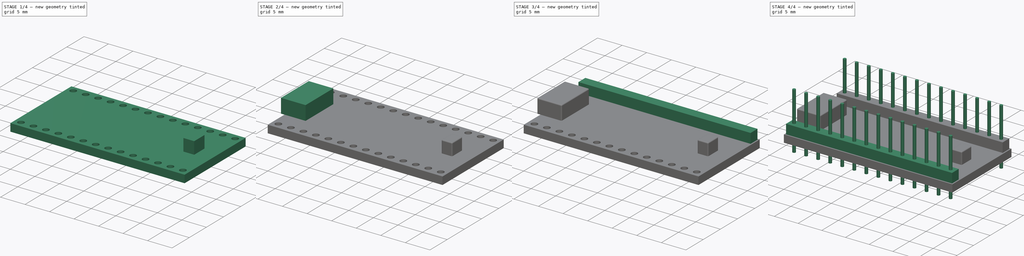
[diagram: build sequence overview — one tinted view per stage of 4, left to right]
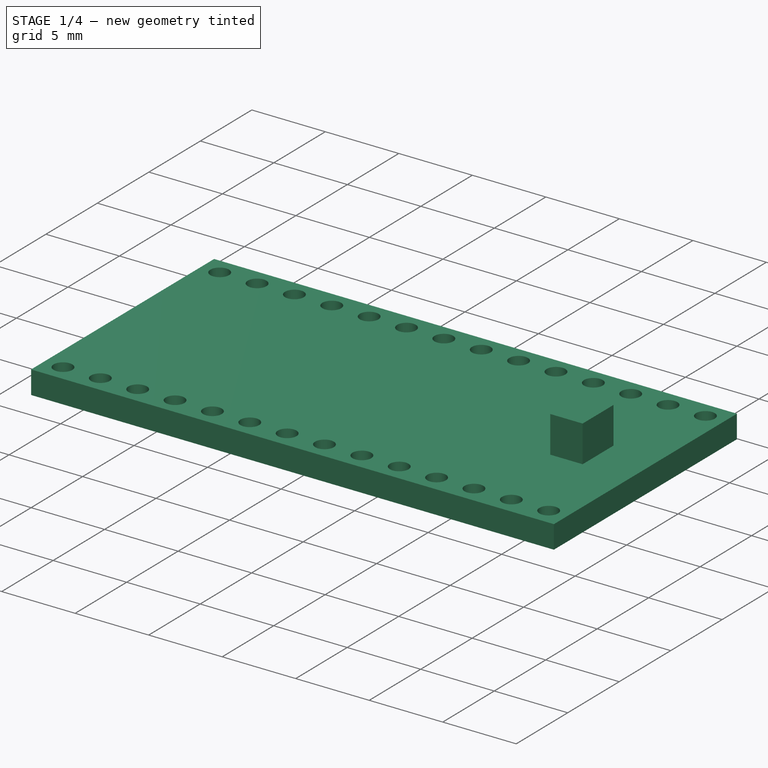
[diagram: stage 1 of 4 — iso view after this stage's code; geometry added in this stage tinted green]
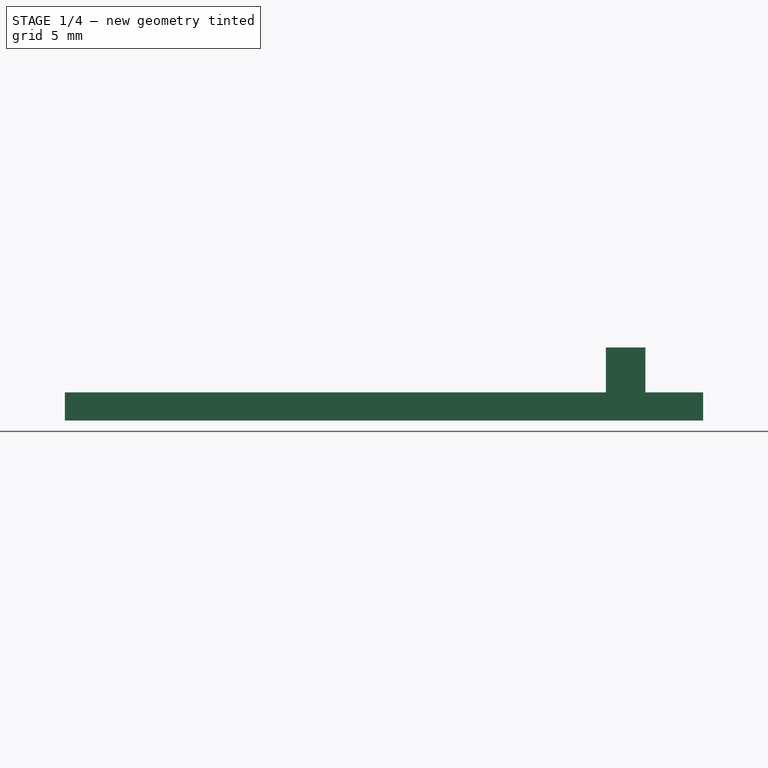
[diagram: stage 1 of 4 — front view after this stage's code; geometry added in this stage tinted green]
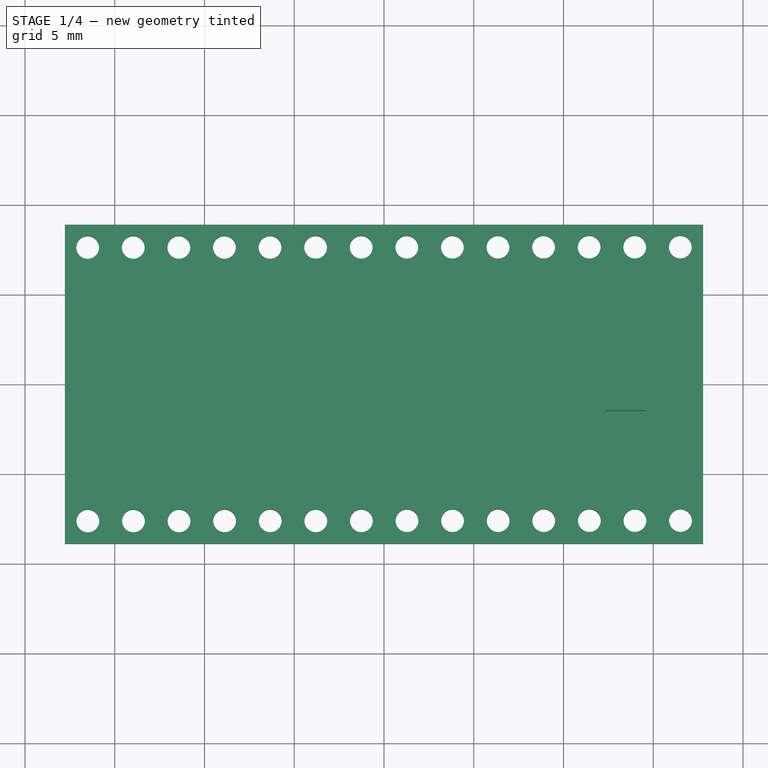
[diagram: stage 1 of 4 — top view after this stage's code; geometry added in this stage tinted green]
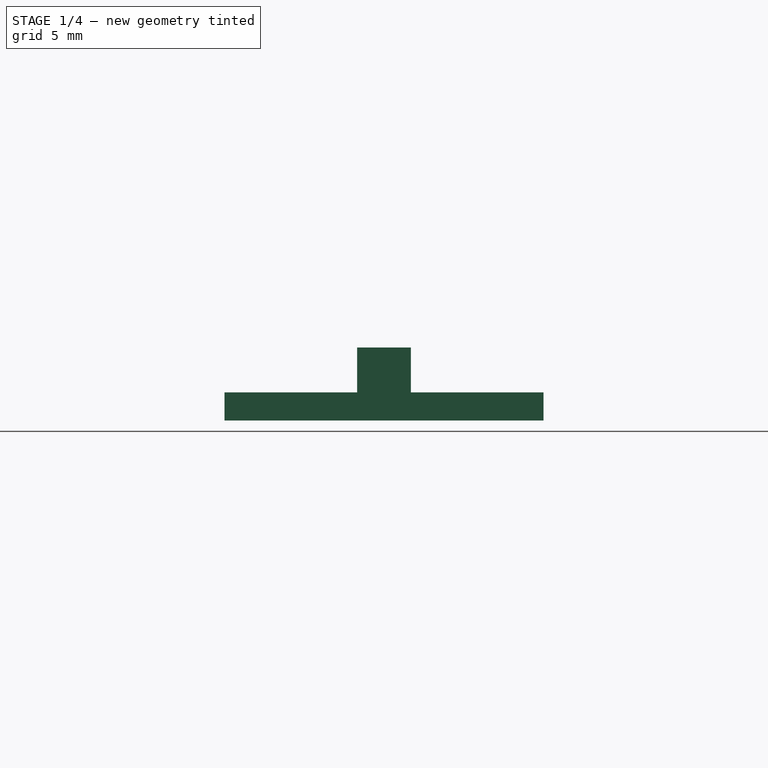
[diagram: stage 1 of 4 — right view after this stage's code; geometry added in this stage tinted green]
FCSTD DOCUMENT  (FreeCAD 0.16RUnknown)
Label: Teensy32_HM
License: All rights reserved
LicenseURL: http://en.wikipedia.org/wiki/All_rights_reserved
objects: Sketcher::SketchObject×7, PartDesign::Pad×5, Part::Fillet×4, PartDesign::Pocket×1, Part::FeaturePython×1, PartDesign::Mirrored×1, App::DocumentObjectGroup×1
note: 25 computed .brp shape members not serialized (recipe doc carries the construction recipe); baked Part::Feature solids carry a one-line shape summary decoded from their .brp

FEATURE [Sketcher::SketchObject] Sketch
  sketch-geometry (4):
    g0: LineSegment StartX=-17.78 StartY=-8.89 StartZ=0 EndX=17.78 EndY=-8.89 EndZ=0
    g1: LineSegment StartX=17.78 StartY=-8.89 StartZ=0 EndX=17.78 EndY=8.89 EndZ=0
    g2: LineSegment StartX=17.78 StartY=8.89 StartZ=0 EndX=-17.78 EndY=8.89 EndZ=0
    g3: LineSegment StartX=-17.78 StartY=8.89 StartZ=0 EndX=-17.78 EndY=-8.89 EndZ=0
  constraints (12):
    c: Coincident(g0,g1)
    c: Coincident(g1,g2)
    c: Coincident(g2,g3)
    c: Coincident(g3,g0)
    c: Horizontal(g0)
    c: Horizontal(g2)
    c: Vertical(g1)
    c: Vertical(g3)
    c: Symmetric(g2,g0,g-1)
    c: Symmetric(g2,g1,g-2)
    c: DistanceX(g2,g2) = 35.56
    c: DistanceY(g1,g1) = 17.78
FEATURE [PartDesign::Pad] Pad
  Length = 1.57
  Length2 = 100
  Sketch = -> Sketch
  Type = 0
FEATURE [Sketcher::SketchObject] Sketch001
  ExternalGeometry = -> [Pad]
  Placement = pos=(0,0,1.57) rot=(0,0,1;0rad)
  Support = -> Pad [Face6]
  sketch-geometry (55):
    g0: Circle CenterX=-16.51 CenterY=7.62 CenterZ=0 NormalX=0 NormalY=0 NormalZ=1 Radius=0.635
    g1: Circle CenterX=-13.97 CenterY=7.62185 CenterZ=0 NormalX=0 NormalY=0 NormalZ=1 Radius=0.635
    g2: LineSegment [constr] StartX=-16.51 StartY=7.62 StartZ=0 EndX=-13.97 EndY=7.62185 EndZ=0
    g3: Circle CenterX=-11.43 CenterY=7.62369 CenterZ=0 NormalX=0 NormalY=0 NormalZ=1 Radius=0.635
    g4: LineSegment [constr] StartX=-13.97 StartY=7.62185 StartZ=0 EndX=-11.43 EndY=7.62369 EndZ=0
    g5: Circle CenterX=-8.89 CenterY=7.62554 CenterZ=0 NormalX=0 NormalY=0 NormalZ=1 Radius=0.635
    g6: LineSegment [constr] StartX=-11.43 StartY=7.62369 StartZ=0 EndX=-8.89 EndY=7.62554 EndZ=0
    g7: Circle CenterX=-6.35 CenterY=7.62738 CenterZ=0 NormalX=0 NormalY=0 NormalZ=1 Radius=0.635
    g8: LineSegment [constr] StartX=-8.89 StartY=7.62554 StartZ=0 EndX=-6.35 EndY=7.62738 EndZ=0
    g9: Circle CenterX=-3.81 CenterY=7.62923 CenterZ=0 NormalX=0 NormalY=0 NormalZ=1 Radius=0.635
    g10: LineSegment [constr] StartX=-6.35 StartY=7.62738 StartZ=0 EndX=-3.81 EndY=7.62923 EndZ=0
    g11: Circle CenterX=-1.27 CenterY=7.63107 CenterZ=0 NormalX=0 NormalY=0 NormalZ=1 Radius=0.635
    g12: LineSegment [constr] StartX=-3.81 StartY=7.62923 StartZ=0 EndX=-1.27 EndY=7.63107 EndZ=0
    g13: Circle CenterX=1.27 CenterY=7.63292 CenterZ=0 NormalX=0 NormalY=0 NormalZ=1 Radius=0.635
    g14: LineSegment [constr] StartX=-1.27 StartY=7.63107 StartZ=0 EndX=1.27 EndY=7.63292 EndZ=0
    g15: Circle CenterX=3.80999 CenterY=7.63476 CenterZ=0 NormalX=0 NormalY=0 NormalZ=1 Radius=0.635
    g16: LineSegment [constr] StartX=1.27 StartY=7.63292 StartZ=0 EndX=3.80999 EndY=7.63476 EndZ=0
    g17: Circle CenterX=6.34999 CenterY=7.63661 CenterZ=0 NormalX=0 NormalY=0 NormalZ=1 Radius=0.635
    g18: LineSegment [constr] StartX=3.80999 StartY=7.63476 StartZ=0 EndX=6.34999 EndY=7.63661 EndZ=0
    g19: Circle CenterX=8.88999 CenterY=7.63845 CenterZ=0 NormalX=0 NormalY=0 NormalZ=1 Radius=0.635
    g20: LineSegment [constr] StartX=6.34999 StartY=7.63661 StartZ=0 EndX=8.88999 EndY=7.63845 EndZ=0
    g21: Circle CenterX=11.43 CenterY=7.6403 CenterZ=0 NormalX=0 NormalY=0 NormalZ=1 Radius=0.635
    g22: LineSegment [constr] StartX=8.88999 StartY=7.63845 StartZ=0 EndX=11.43 EndY=7.6403 EndZ=0
    g23: Circle CenterX=13.97 CenterY=7.64214 CenterZ=0 NormalX=0 NormalY=0 NormalZ=1 Radius=0.635
    g24: LineSegment [constr] StartX=11.43 StartY=7.6403 StartZ=0 EndX=13.97 EndY=7.64214 EndZ=0
    g25: Circle CenterX=16.51 CenterY=7.64399 CenterZ=0 NormalX=0 NormalY=0 NormalZ=1 Radius=0.635
    g26: LineSegment [constr] StartX=13.97 StartY=7.64214 StartZ=0 EndX=16.51 EndY=7.64399 EndZ=0
    g27: Circle CenterX=-16.4989 CenterY=-7.62 CenterZ=0 NormalX=0 NormalY=0 NormalZ=1 Radius=0.635
    g28: LineSegment [constr] StartX=-16.51 StartY=7.62 StartZ=0 EndX=-16.4989 EndY=-7.62 EndZ=0
    g29: Circle CenterX=-13.9589 CenterY=-7.61815 CenterZ=0 NormalX=0 NormalY=0 NormalZ=1 Radius=0.635
    g30: LineSegment [constr] StartX=-16.4989 StartY=-7.62 StartZ=0 EndX=-13.9589 EndY=-7.61815 EndZ=0
    g31: Circle CenterX=-11.4189 CenterY=-7.61631 CenterZ=0 NormalX=0 NormalY=0 NormalZ=1 Radius=0.635
    g32: LineSegment [constr] StartX=-13.9589 StartY=-7.61815 StartZ=0 EndX=-11.4189 EndY=-7.61631 EndZ=0
    g33: Circle CenterX=-8.87893 CenterY=-7.61446 CenterZ=0 NormalX=0 NormalY=0 NormalZ=1 Radius=0.635
    g34: LineSegment [constr] StartX=-11.4189 StartY=-7.61631 StartZ=0 EndX=-8.87893 EndY=-7.61446 EndZ=0
    g35: Circle CenterX=-6.33893 CenterY=-7.61261 CenterZ=0 NormalX=0 NormalY=0 NormalZ=1 Radius=0.635
    g36: LineSegment [constr] StartX=-8.87893 StartY=-7.61446 StartZ=0 EndX=-6.33893 EndY=-7.61261 EndZ=0
    g37: Circle CenterX=-3.79893 CenterY=-7.61077 CenterZ=0 NormalX=0 NormalY=0 NormalZ=1 Radius=0.635
    g38: LineSegment [constr] StartX=-6.33893 StartY=-7.61261 StartZ=0 EndX=-3.79893 EndY=-7.61077 EndZ=0
    g39: Circle CenterX=-1.25893 CenterY=-7.60892 CenterZ=0 NormalX=0 NormalY=0 NormalZ=1 Radius=0.635
    g40: LineSegment [constr] StartX=-3.79893 StartY=-7.61077 StartZ=0 EndX=-1.25893 EndY=-7.60892 EndZ=0
    g41: Circle CenterX=1.28107 CenterY=-7.60708 CenterZ=0 NormalX=0 NormalY=0 NormalZ=1 Radius=0.635
    g42: LineSegment [constr] StartX=-1.25893 StartY=-7.60892 StartZ=0 EndX=1.28107 EndY=-7.60708 EndZ=0
    g43: Circle CenterX=3.82107 CenterY=-7.60523 CenterZ=0 NormalX=0 NormalY=0 NormalZ=1 Radius=0.635
    g44: LineSegment [constr] StartX=1.28107 StartY=-7.60708 StartZ=0 EndX=3.82107 EndY=-7.60523 EndZ=0
    g45: Circle CenterX=6.36107 CenterY=-7.60339 CenterZ=0 NormalX=0 NormalY=0 NormalZ=1 Radius=0.635
    g46: LineSegment [constr] StartX=3.82107 StartY=-7.60523 StartZ=0 EndX=6.36107 EndY=-7.60339 EndZ=0
    g47: Circle CenterX=8.90107 CenterY=-7.60154 CenterZ=0 NormalX=0 NormalY=0 NormalZ=1 Radius=0.635
    g48: LineSegment [constr] StartX=6.36107 StartY=-7.60339 StartZ=0 EndX=8.90107 EndY=-7.60154 EndZ=0
    g49: Circle CenterX=11.4411 CenterY=-7.5997 CenterZ=0 NormalX=0 NormalY=0 NormalZ=1 Radius=0.635
    g50: LineSegment [constr] StartX=8.90107 StartY=-7.60154 StartZ=0 EndX=11.4411 EndY=-7.5997 EndZ=0
    g51: Circle CenterX=13.9811 CenterY=-7.59785 CenterZ=0 NormalX=0 NormalY=0 NormalZ=1 Radius=0.635
    g52: LineSegment [constr] StartX=11.4411 StartY=-7.5997 StartZ=0 EndX=13.9811 EndY=-7.59785 EndZ=0
    g53: Circle CenterX=16.5211 CenterY=-7.59601 CenterZ=0 NormalX=0 NormalY=0 NormalZ=1 Radius=0.635
    g54: LineSegment [constr] StartX=13.9811 StartY=-7.59785 StartZ=0 EndX=16.5211 EndY=-7.59601 EndZ=0
  constraints (138):
    c: Radius(g0) = 0.635
    c: Distance(g0,g-3) = 1.27
    c: Distance(g0,g-4) = 1.27
    c: Radius(g1) = 0.635
    c: Coincident(g0,g2)
    c: Coincident(g1,g2)
    c: Distance(g2) = 2.54
    c: Angle(g2) = 0.000726533
    c: Radius(g3) = 0.635
    c: Coincident(g1,g4)
    c: Coincident(g3,g4)
    c: Equal(g2,g4)
    c: Parallel(g4,g2)
    c: Radius(g5) = 0.635
    c: Coincident(g3,g6)
    c: Coincident(g5,g6)
    c: Equal(g2,g6)
    c: Parallel(g6,g2)
    c: Radius(g7) = 0.635
    c: Coincident(g5,g8)
    c: Coincident(g7,g8)
    c: Equal(g2,g8)
    c: Parallel(g8,g2)
    c: Radius(g9) = 0.635
    c: Coincident(g7,g10)
    c: Coincident(g9,g10)
    c: Equal(g2,g10)
    c: Parallel(g10,g2)
    c: Radius(g11) = 0.635
    c: Coincident(g9,g12)
    c: Coincident(g11,g12)
    c: Equal(g2,g12)
    c: Parallel(g12,g2)
    c: Radius(g13) = 0.635
    c: Coincident(g11,g14)
    c: Coincident(g13,g14)
    c: Equal(g2,g14)
    c: Parallel(g14,g2)
    c: Radius(g15) = 0.635
    c: Coincident(g13,g16)
    c: Coincident(g15,g16)
    c: Equal(g2,g16)
    c: Parallel(g16,g2)
    c: Radius(g17) = 0.635
    c: Coincident(g15,g18)
    c: Coincident(g17,g18)
    c: Equal(g2,g18)
    c: Parallel(g18,g2)
    c: Radius(g19) = 0.635
    c: Coincident(g17,g20)
    c: Coincident(g19,g20)
    c: Equal(g2,g20)
    c: Parallel(g20,g2)
    c: Radius(g21) = 0.635
    c: Coincident(g19,g22)
    c: Coincident(g21,g22)
    c: Equal(g2,g22)
    c: Parallel(g22,g2)
    c: Radius(g23) = 0.635
    c: Coincident(g21,g24)
    c: Coincident(g23,g24)
    c: Equal(g2,g24)
    c: Parallel(g24,g2)
    c: Radius(g25) = 0.635
    c: Coincident(g23,g26)
    c: Coincident(g25,g26)
    c: Equal(g2,g26)
    c: Parallel(g26,g2)
    c: Radius(g27) = 0.635
    c: Coincident(g0,g28)
    c: Coincident(g27,g28)
    c: Distance(g28) = 15.24
    c: Perpendicular(g28,g2)
    c: Radius(g29) = 0.635
    c: Coincident(g27,g30)
    c: Coincident(g29,g30)
    c: Equal(g2,g30)
    c: Parallel(g30,g2)
    c: Radius(g31) = 0.635
    c: Coincident(g29,g32)
    c: Coincident(g31,g32)
    c: Equal(g2,g32)
    c: Parallel(g32,g2)
    c: Radius(g33) = 0.635
    c: Coincident(g31,g34)
    c: Coincident(g33,g34)
    c: Equal(g2,g34)
    c: Parallel(g34,g2)
    c: Radius(g35) = 0.635
    c: Coincident(g33,g36)
    c: Coincident(g35,g36)
    c: Equal(g2,g36)
    c: Parallel(g36,g2)
    c: Radius(g37) = 0.635
    c: Coincident(g35,g38)
    c: Coincident(g37,g38)
    c: Equal(g2,g38)
    c: Parallel(g38,g2)
    c: Radius(g39) = 0.635
    c: Coincident(g37,g40)
    c: Coincident(g39,g40)
    c: Equal(g2,g40)
    c: Parallel(g40,g2)
    c: Radius(g41) = 0.635
    c: Coincident(g39,g42)
    c: Coincident(g41,g42)
    c: Equal(g2,g42)
    c: Parallel(g42,g2)
    c: Radius(g43) = 0.635
    c: Coincident(g41,g44)
    c: Coincident(g43,g44)
    c: Equal(g2,g44)
    c: Parallel(g44,g2)
    c: Radius(g45) = 0.635
    c: Coincident(g43,g46)
    c: Coincident(g45,g46)
    c: Equal(g2,g46)
    c: Parallel(g46,g2)
    c: Radius(g47) = 0.635
    c: Coincident(g45,g48)
    c: Coincident(g47,g48)
    c: Equal(g2,g48)
    c: Parallel(g48,g2)
    c: Radius(g49) = 0.635
    c: Coincident(g47,g50)
    c: Coincident(g49,g50)
    c: Equal(g2,g50)
    c: Parallel(g50,g2)
    c: Radius(g51) = 0.635
    c: Coincident(g49,g52)
    c: Coincident(g51,g52)
    c: Equal(g2,g52)
    c: Parallel(g52,g2)
    c: Radius(g53) = 0.635
    c: Coincident(g51,g54)
    c: Coincident(g53,g54)
    c: Equal(g2,g54)
    c: Parallel(g54,g2)
FEATURE [PartDesign::Pocket] Pocket
  Length = 5
  Sketch = -> Sketch001
  Type = 1
FEATURE [Sketcher::SketchObject] Sketch002
  ExternalGeometry = -> [Pocket]
  Placement = pos=(0,0,1.57) rot=(0,0,1;0rad)
  Support = -> Pocket [Face5]
  sketch-geometry (6):
    g0: LineSegment StartX=12.36 StartY=1.5 StartZ=0 EndX=14.56 EndY=1.5 EndZ=0
    g1: LineSegment StartX=14.56 StartY=1.5 StartZ=0 EndX=14.56 EndY=-1.5 EndZ=0
    g2: LineSegment StartX=14.56 StartY=-1.5 StartZ=0 EndX=12.36 EndY=-1.5 EndZ=0
    g3: LineSegment StartX=12.36 StartY=-1.5 StartZ=0 EndX=12.36 EndY=1.5 EndZ=0
    g4: GeomPoint [constr] X=13.46 Y=0 Z=0
    g5: LineSegment [constr] StartX=-16.51 StartY=7.17073 StartZ=0 EndX=-16.51 EndY=-6.94021 EndZ=0
  constraints (16):
    c: Coincident(g0,g1)
    c: Coincident(g1,g2)
    c: Coincident(g2,g3)
    c: Coincident(g3,g0)
    c: Horizontal(g0)
    c: Horizontal(g2)
    c: Vertical(g1)
    c: Vertical(g3)
    c: Symmetric(g1,g0,g-1)
    c: DistanceX(g2,g2) = 2.2
    c: DistanceY(g1,g1) = 3
    c: PointOnObject(g4,g-1)
    c: Distance(g4,g3) = 1.1
    c: Vertical(g5)
    c: Distance(g4,g5) = 29.97
    c: PointOnObject(g-3,g5)
FEATURE [PartDesign::Pad] Pad001
  Length = 2.5
  Length2 = 100
  Sketch = -> Sketch002
  Type = 0
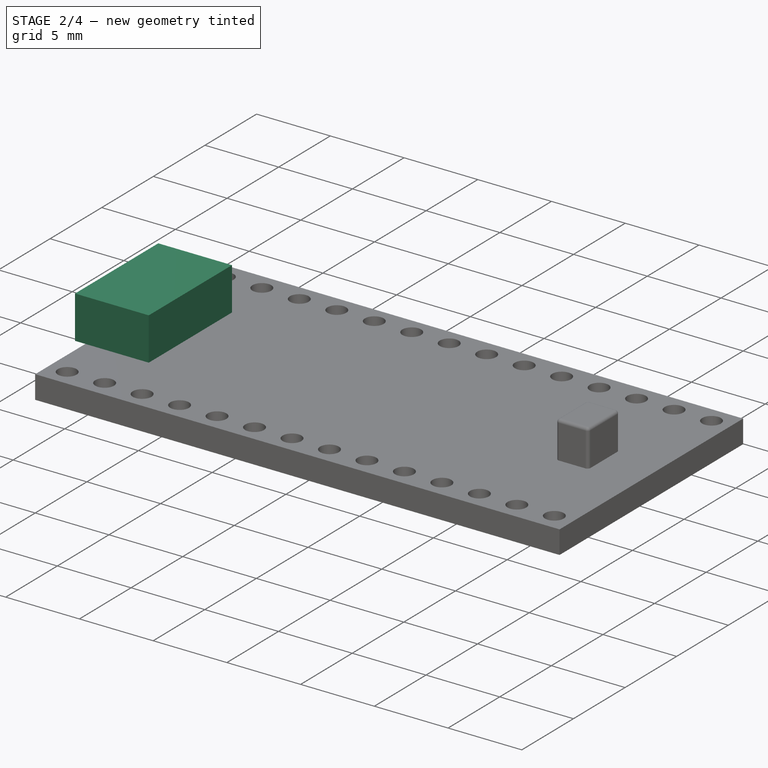
[diagram: stage 2 of 4 — iso view after this stage's code; geometry added in this stage tinted green]
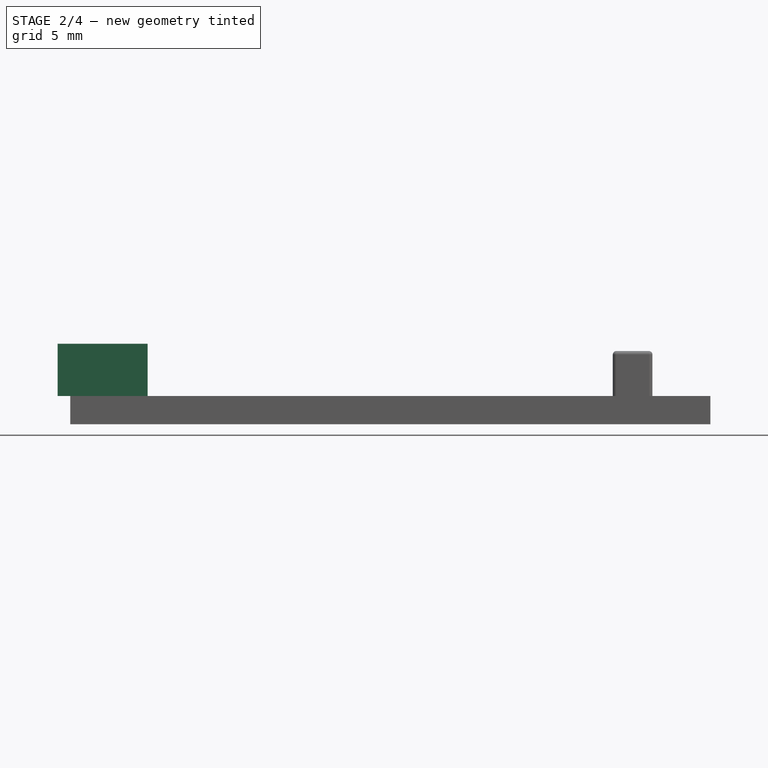
[diagram: stage 2 of 4 — front view after this stage's code; geometry added in this stage tinted green]
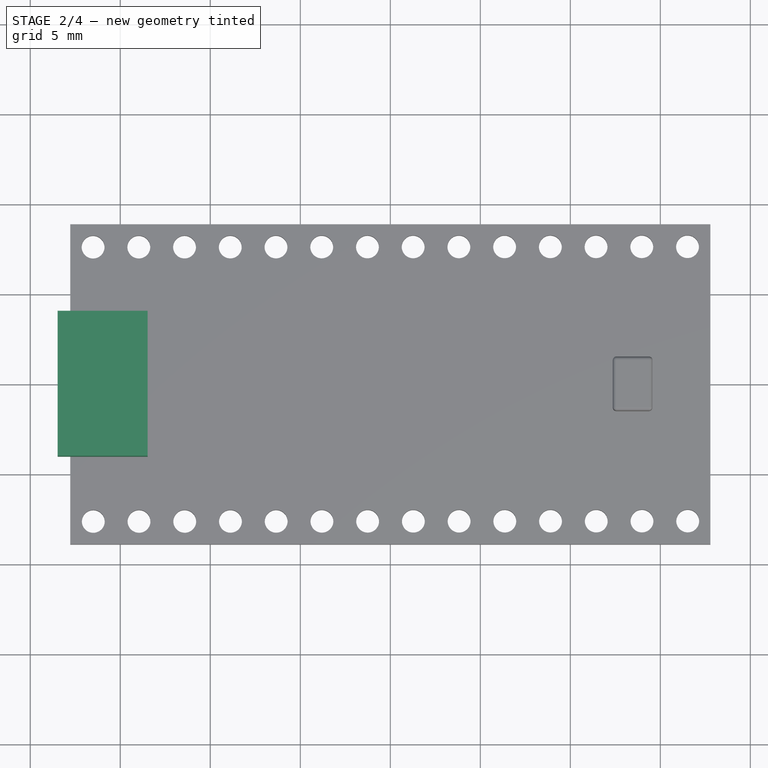
[diagram: stage 2 of 4 — top view after this stage's code; geometry added in this stage tinted green]
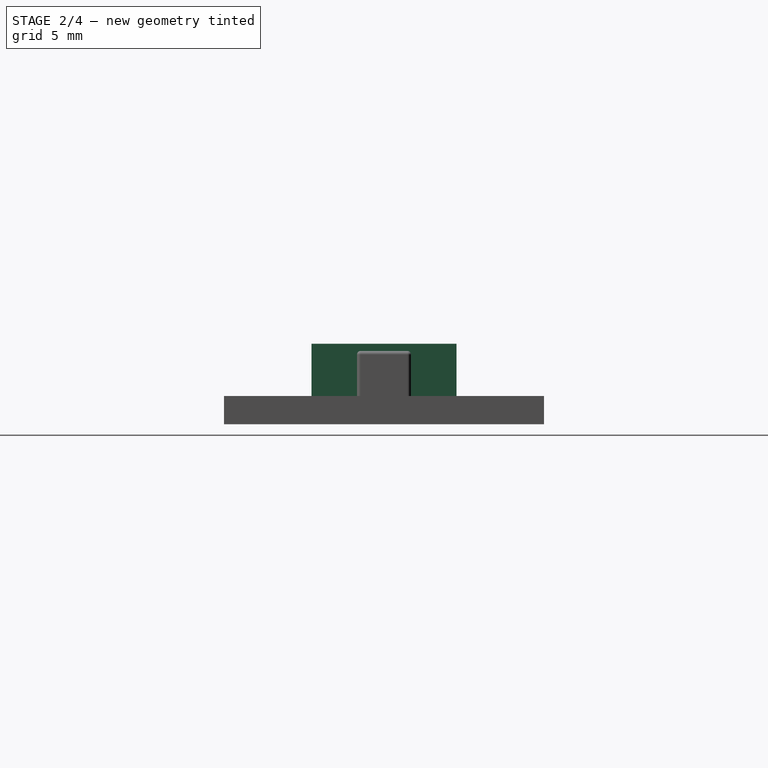
[diagram: stage 2 of 4 — right view after this stage's code; geometry added in this stage tinted green]
FEATURE [Part::Fillet] Fillet
  Base = -> Pad001
  Edges = 4 edges r=0.2: [Edge101,Edge103,Edge105,Edge107]
FEATURE [Part::Fillet] Fillet001
  Base = -> Fillet
  Edges = 1 edges r=0.2: [Edge49]
FEATURE [Sketcher::SketchObject] Sketch003
  ExternalGeometry = -> [Fillet001]
  Placement = pos=(0,0,1.57) rot=(0,0,1;0rad)
  Support = -> Fillet001 [Face4]
  sketch-geometry (4):
    g0: LineSegment StartX=-18.48 StartY=4.03 StartZ=0 EndX=-13.48 EndY=4.03 EndZ=0
    g1: LineSegment StartX=-13.48 StartY=4.03 StartZ=0 EndX=-13.48 EndY=-4.03 EndZ=0
    g2: LineSegment StartX=-13.48 StartY=-4.03 StartZ=0 EndX=-18.48 EndY=-4.03 EndZ=0
    g3: LineSegment StartX=-18.48 StartY=-4.03 StartZ=0 EndX=-18.48 EndY=4.03 EndZ=0
  constraints (12):
    c: Coincident(g0,g1)
    c: Coincident(g1,g2)
    c: Coincident(g2,g3)
    c: Coincident(g3,g0)
    c: Horizontal(g0)
    c: Horizontal(g2)
    c: Vertical(g1)
    c: Vertical(g3)
    c: Symmetric(g0,g1,g-1)
    c: DistanceY(g1,g1) = 8.06
    c: DistanceX(g2,g2) = 5
    c: Distance(g0,g-3) = 0.7
FEATURE [PartDesign::Pad] Pad002
  Length = 2.9
  Length2 = 100
  Sketch = -> Sketch003
  Type = 0
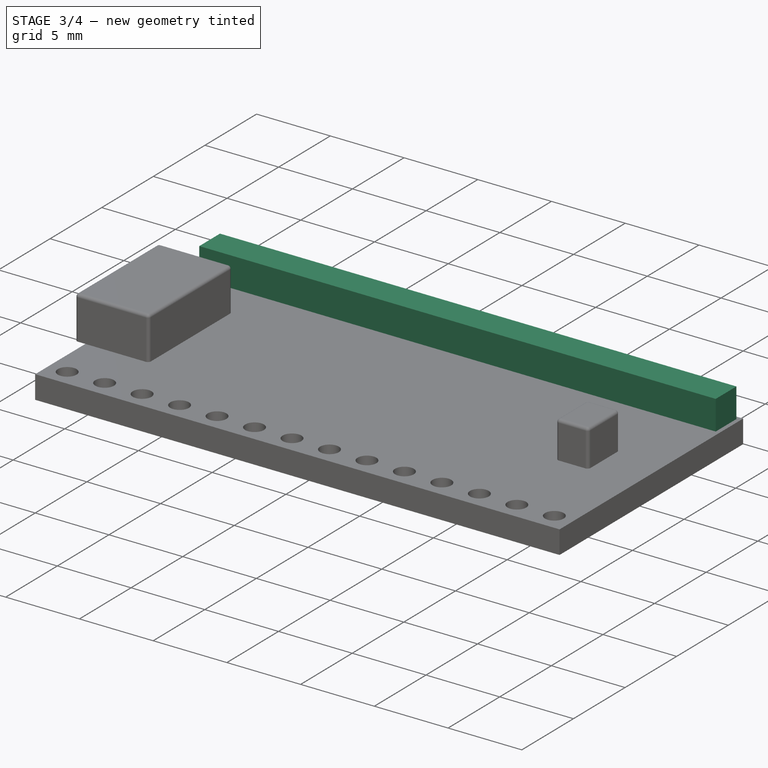
[diagram: stage 3 of 4 — iso view after this stage's code; geometry added in this stage tinted green]
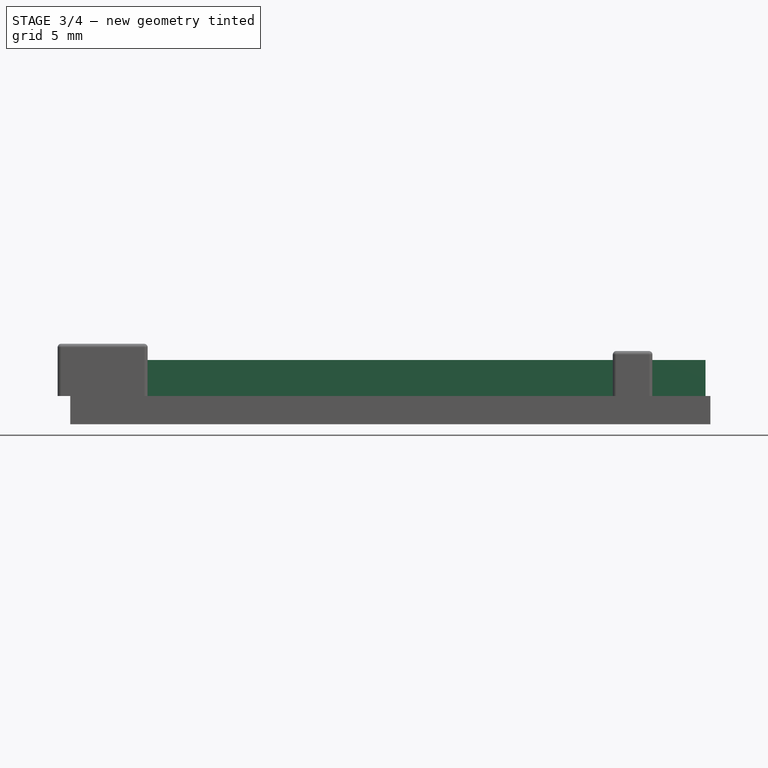
[diagram: stage 3 of 4 — front view after this stage's code; geometry added in this stage tinted green]
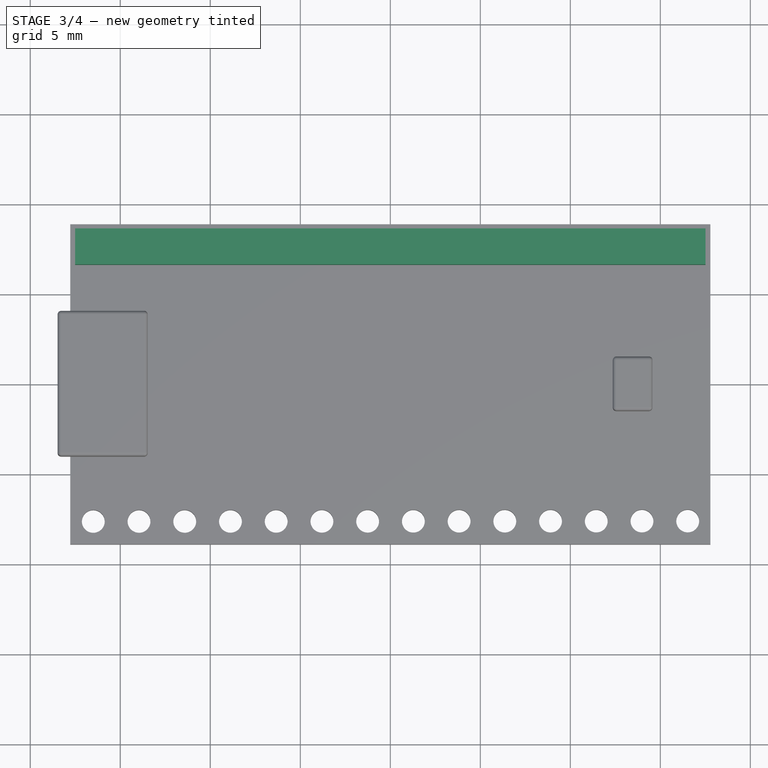
[diagram: stage 3 of 4 — top view after this stage's code; geometry added in this stage tinted green]
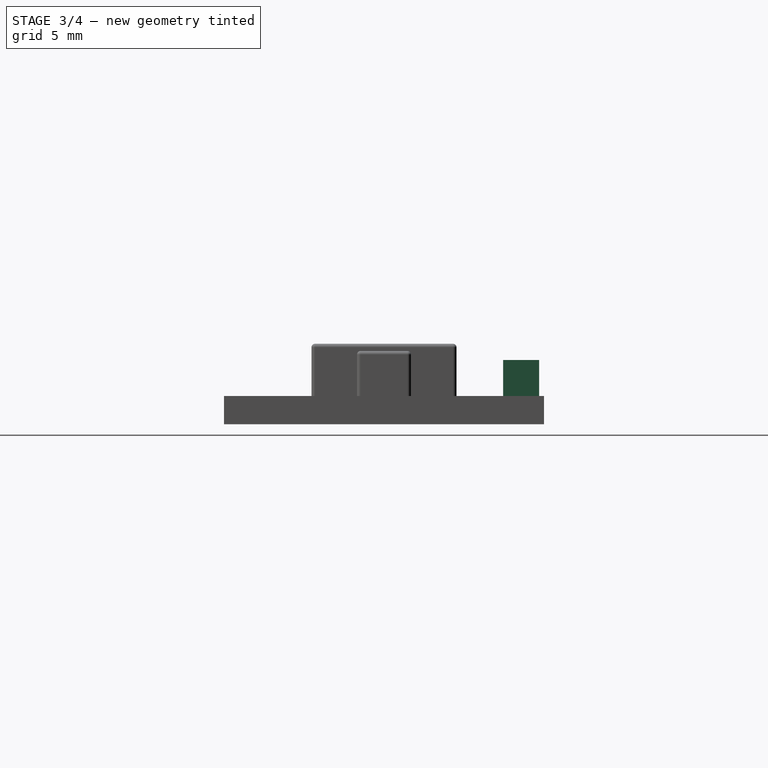
[diagram: stage 3 of 4 — right view after this stage's code; geometry added in this stage tinted green]
FEATURE [Part::Fillet] Fillet002
  Base = -> Pad002
  Edges = 2 edges r=0.2: [Edge7,Edge10]
FEATURE [Part::Fillet] Fillet003
  Base = -> Fillet002
  Edges = 2 edges r=0.2: [Edge4,Edge15]
FEATURE [PartDesign::Pad] Pad004
  Length = 2
  Length2 = 0.5
  Sketch = -> Sketch006
  Type = 4
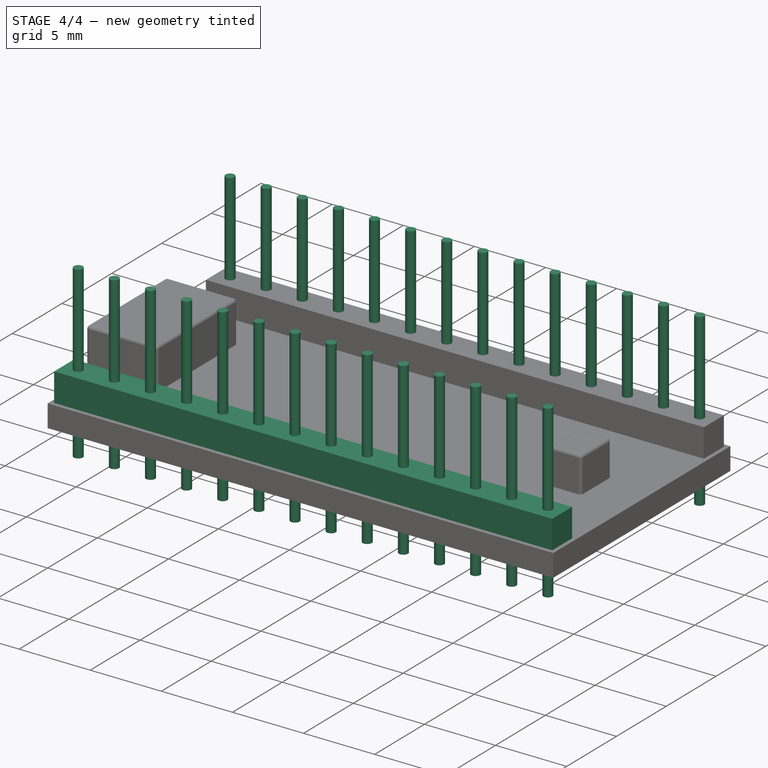
[diagram: stage 4 of 4 — iso view after this stage's code; geometry added in this stage tinted green]
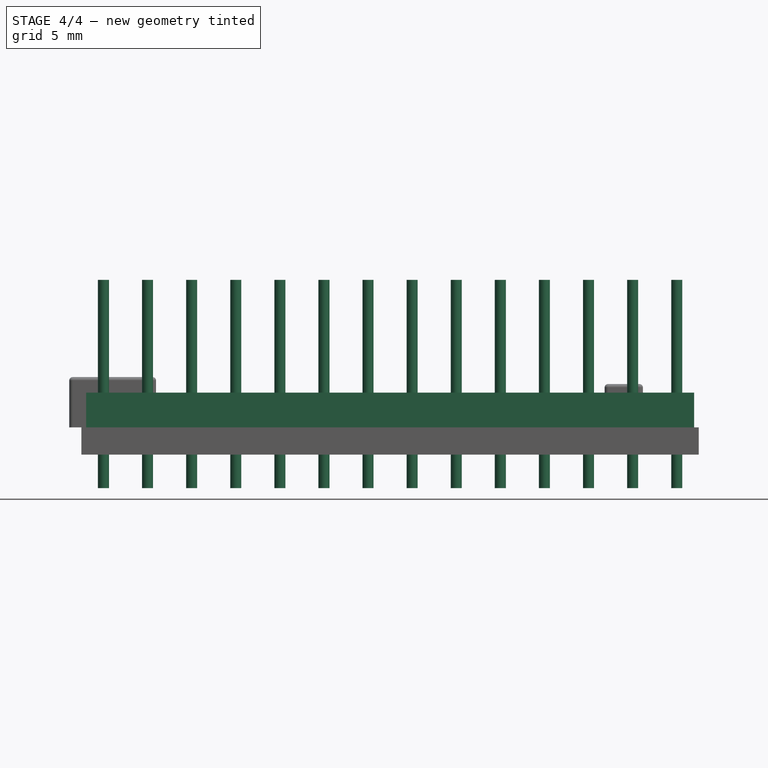
[diagram: stage 4 of 4 — front view after this stage's code; geometry added in this stage tinted green]
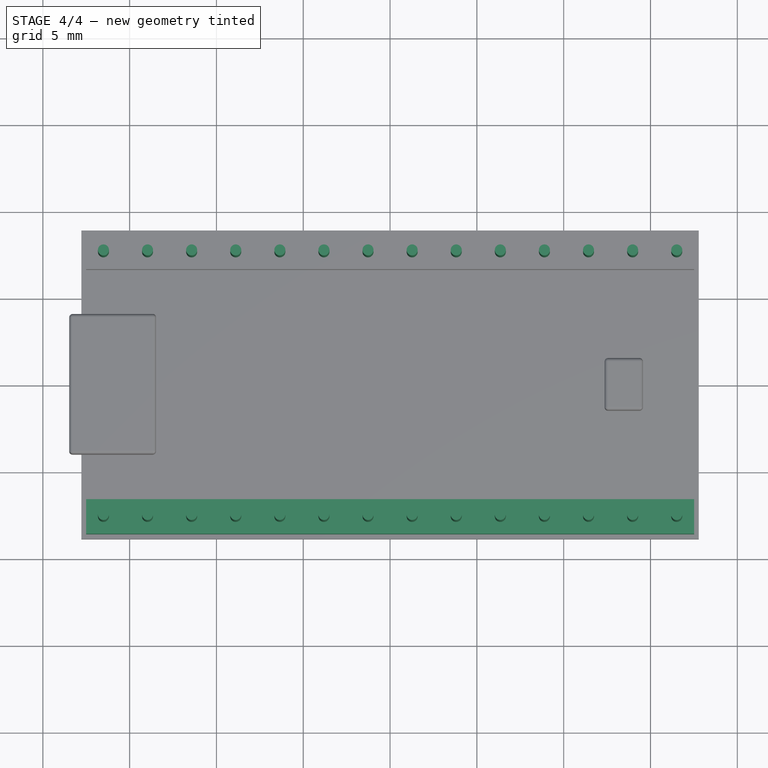
[diagram: stage 4 of 4 — top view after this stage's code; geometry added in this stage tinted green]
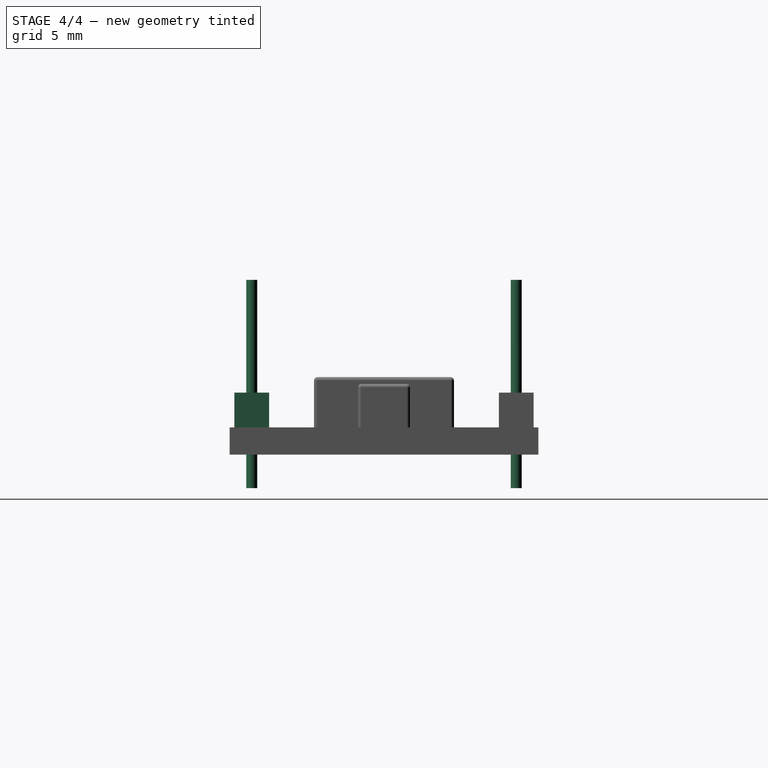
[diagram: stage 4 of 4 — right view after this stage's code; geometry added in this stage tinted green]
FEATURE [Sketcher::SketchObject] Sketch004
  ExternalGeometry = -> [Fillet003]
  Placement = pos=(0,0,1.57) rot=(0,0,1;0rad)
  Support = -> Fillet003 [Face14]
  sketch-geometry (7):
    g0: GeomPoint [constr] X=-16.51 Y=7.62 Z=0
    g1: LineSegment StartX=-16.8275 StartY=7.9375 StartZ=0 EndX=-16.1925 EndY=7.9375 EndZ=0
    g2: LineSegment StartX=-16.1925 StartY=7.9375 StartZ=0 EndX=-16.1925 EndY=7.3025 EndZ=0
    g3: LineSegment StartX=-16.1925 StartY=7.3025 StartZ=0 EndX=-16.8275 EndY=7.3025 EndZ=0
    g4: LineSegment StartX=-16.8275 StartY=7.3025 StartZ=0 EndX=-16.8275 EndY=7.9375 EndZ=0
    g5: LineSegment [constr] StartX=-16.51 StartY=10.7647 StartZ=0 EndX=-16.51 EndY=4.67808 EndZ=0
    g6: LineSegment [constr] StartX=-18.6933 StartY=7.62 StartZ=0 EndX=-14.2221 EndY=7.62 EndZ=0
  constraints (18):
    c: Distance(g0,g-4) = 1.27
    c: Distance(g0,g-3) = 1.27
    c: Coincident(g1,g2)
    c: Coincident(g2,g3)
    c: Coincident(g3,g4)
    c: Coincident(g4,g1)
    c: Horizontal(g1)
    c: Horizontal(g3)
    c: Vertical(g2)
    c: Vertical(g4)
    c: DistanceX(g1,g1) = 0.635
    c: DistanceY(g4,g4) = 0.635
    c: Vertical(g5)
    c: PointOnObject(g0,g5)
    c: Horizontal(g6)
    c: PointOnObject(g0,g6)
    c: Symmetric(g2,g3,g5)
    c: Symmetric(g2,g1,g6)
FEATURE [Sketcher::SketchObject] Sketch005
  ExternalGeometry = -> [Fillet003]
  Placement = pos=(0,0,1.57) rot=(0,0,1;0rad)
  Support = -> Fillet003 [Face14]
  sketch-geometry (1):
    g0: Circle CenterX=-16.51 CenterY=7.62 CenterZ=0 NormalX=0 NormalY=0 NormalZ=1 Radius=0.3175
  constraints (2):
    c: Coincident(g-3,g0)
    c: Radius(g0) = 0.3175
FEATURE [PartDesign::Pad] Pad003
  Length = 8.5
  Length2 = 3.5
  Sketch = -> Sketch005
  Type = 4
FEATURE [Sketcher::SketchObject] Sketch006
  ExternalGeometry = -> [Fillet003]
  Placement = pos=(0,0,1.57) rot=(0,0,1;0rad)
  Support = -> Fillet003 [Face14]
  sketch-geometry (7):
    g0: Circle [constr] CenterX=-16.51 CenterY=7.62 CenterZ=0 NormalX=0 NormalY=0 NormalZ=1 Radius=0.3175
    g1: LineSegment StartX=-17.51 StartY=8.62 StartZ=0 EndX=17.51 EndY=8.62 EndZ=0
    g2: LineSegment StartX=17.51 StartY=8.62 StartZ=0 EndX=17.51 EndY=6.62 EndZ=0
    g3: LineSegment StartX=17.51 StartY=6.62 StartZ=0 EndX=-17.51 EndY=6.62 EndZ=0
    g4: LineSegment StartX=-17.51 StartY=6.62 StartZ=0 EndX=-17.51 EndY=8.62 EndZ=0
    g5: LineSegment [constr] StartX=-16.51 StartY=8.62 StartZ=0 EndX=-16.51 EndY=6.11413 EndZ=0
    g6: LineSegment [constr] StartX=-17.51 StartY=7.62 StartZ=0 EndX=-14.3248 EndY=7.62 EndZ=0
  constraints (22):
    c: Coincident(g-3,g0)
    c: Radius(g0) = 0.3175
    c: Coincident(g1,g2)
    c: Coincident(g2,g3)
    c: Coincident(g3,g4)
    c: Coincident(g4,g1)
    c: Horizontal(g1)
    c: Horizontal(g3)
    c: Vertical(g2)
    c: Vertical(g4)
    c: Vertical(g5)
    c: Horizontal(g6)
    c: PointOnObject(g0,g6)
    c: PointOnObject(g0,g5)
    c: Symmetric(g3,g1,g6)
    c: DistanceY(g4,g4) = 2
    c: DistanceX(g6,g6) = 3.18521
    c: DistanceY(g5,g5) = 2.50587
    c: PointOnObject(g5,g1)
    c: PointOnObject(g6,g4)
    c: Distance(g3,g5) = 1
    c: DistanceX(g1,g1) = 35.02
FEATURE [Part::FeaturePython] Array  # Draft array (typed FeaturePython)
  Angle = 360
  ArrayType = 0
  Axis = (0,0,1)
  Base = -> Pad003
  Center = (0,0,0)
  Fuse = false
  IntervalAxis = (0,0,0)
  IntervalX = (2.54,0,0)
  IntervalY = (0,-15.24,0)
  IntervalZ = (0,0,0)
  NumberPolar = 1
  NumberX = 14
  NumberY = 2
  NumberZ = 1
FEATURE [PartDesign::Mirrored] Mirrored
  MirrorPlane = -> Sketch006 [H_Axis]
  Originals = -> [Pad004]
FEATURE [App::DocumentObjectGroup] Gruppe  label="PINS"
  Group = -> [Pad003,Pad004,Array,Mirrored]
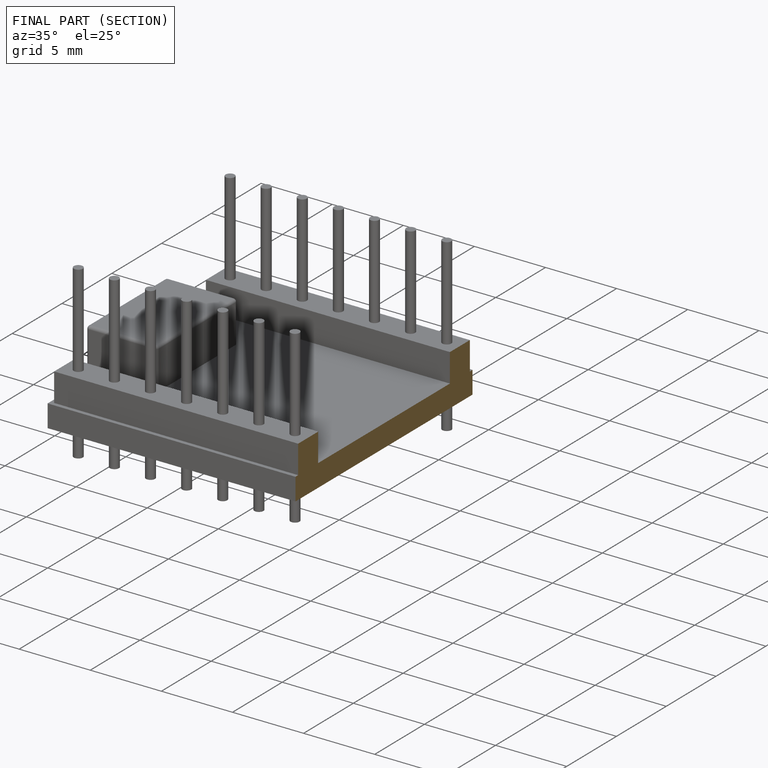
[diagram: finished part — half-section view (interior)]
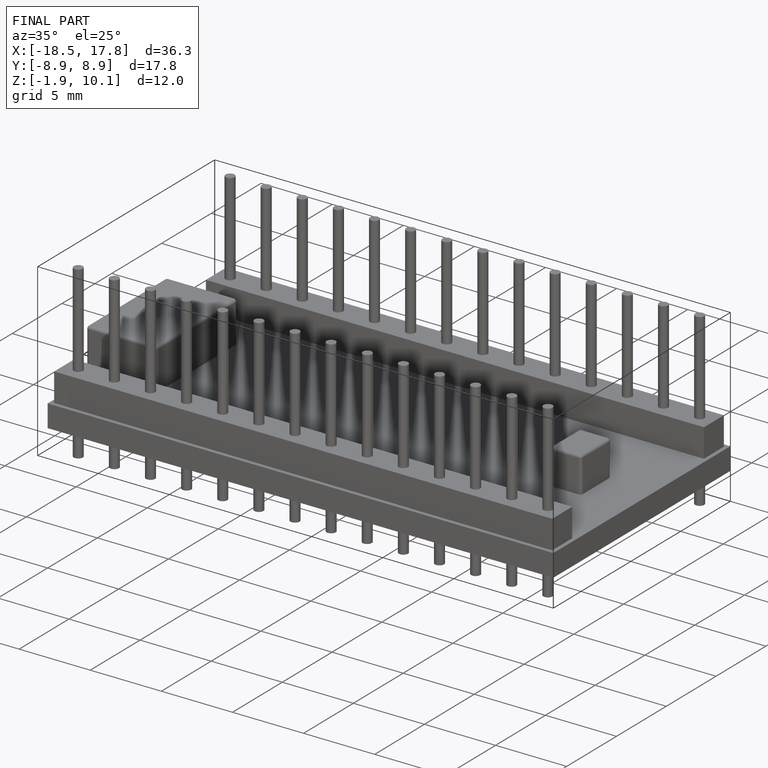
[diagram: finished part — iso view with bounding-box wireframe]
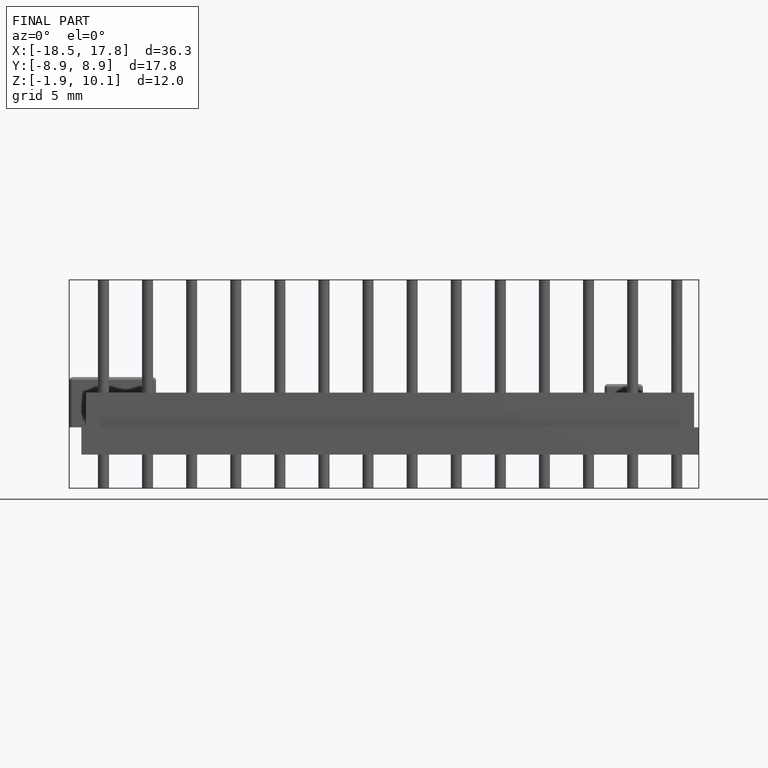
[diagram: finished part — front view with bounding-box wireframe]
